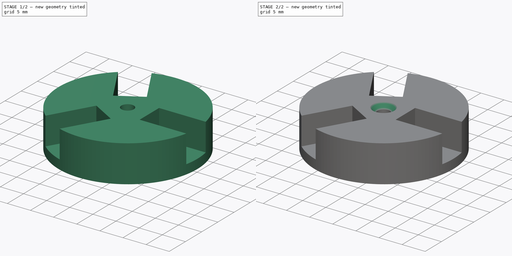
[diagram: build sequence overview — one tinted view per stage of 2, left to right]
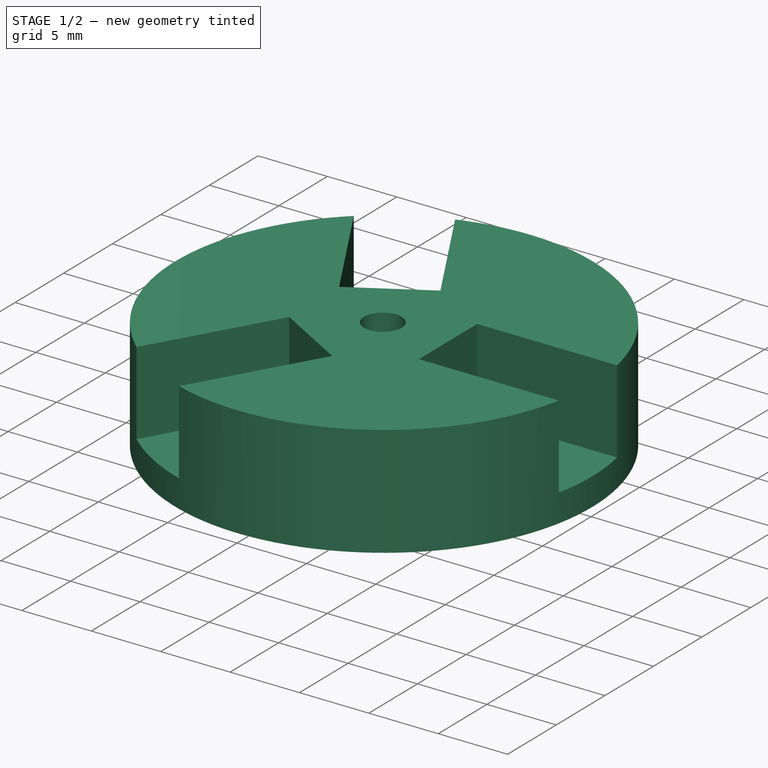
[diagram: stage 1 of 2 — iso view after this stage's code; geometry added in this stage tinted green]
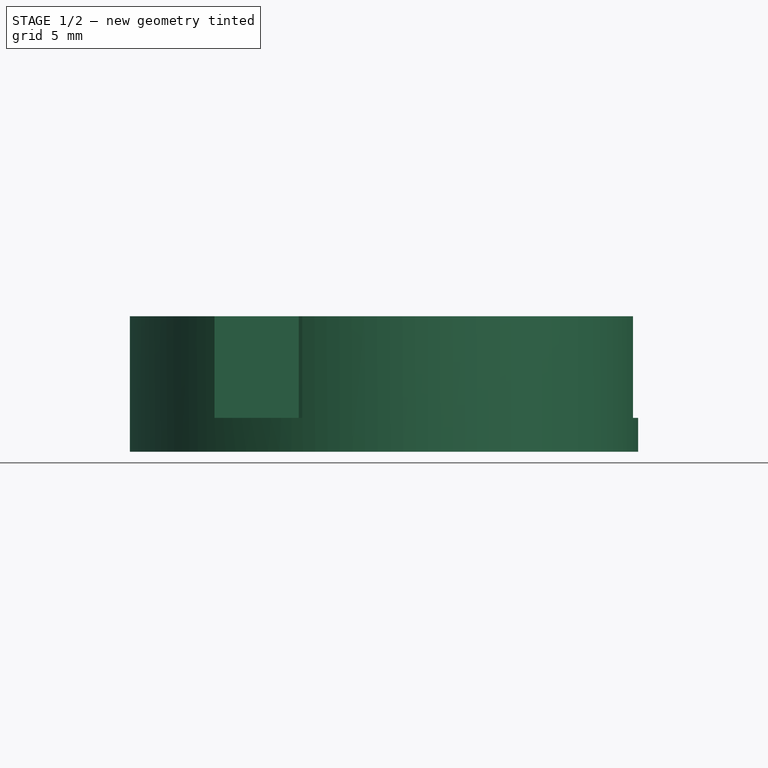
[diagram: stage 1 of 2 — front view after this stage's code; geometry added in this stage tinted green]
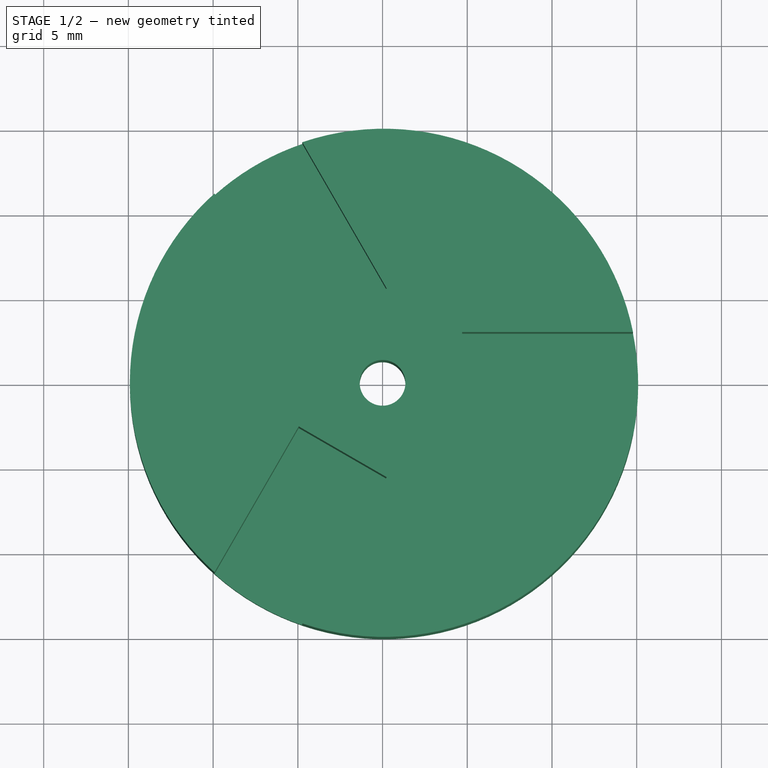
[diagram: stage 1 of 2 — top view after this stage's code; geometry added in this stage tinted green]
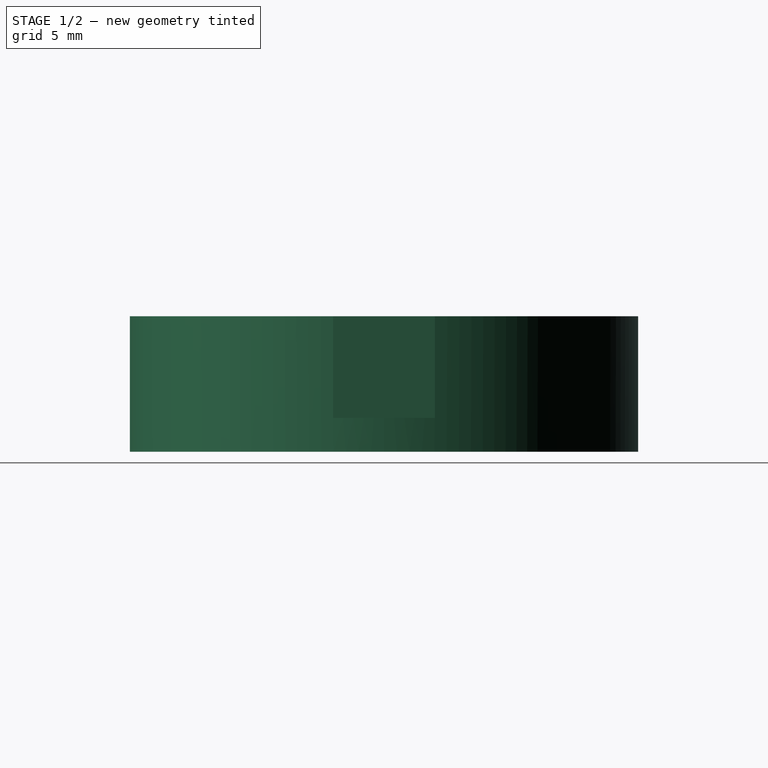
[diagram: stage 1 of 2 — right view after this stage's code; geometry added in this stage tinted green]
FCSTD DOCUMENT  (FreeCAD 0.16R6712 (Git))
Label: windCupHolder
License: All rights reserved
LicenseURL: http://en.wikipedia.org/wiki/All_rights_reserved
objects: Sketcher::SketchObject×3, PartDesign::Pocket×2, PartDesign::Pad×1, PartDesign::Chamfer×1
note: 10 computed .brp shape members not serialized (recipe doc carries the construction recipe); baked Part::Feature solids carry a one-line shape summary decoded from their .brp

FEATURE [Sketcher::SketchObject] Sketch
  sketch-geometry (2):
    g0: Circle CenterX=0.085228 CenterY=0 CenterZ=0 NormalX=0 NormalY=0 NormalZ=1 Radius=15
    g1: Circle CenterX=0 CenterY=0 CenterZ=0 NormalX=0 NormalY=0 NormalZ=1 Radius=1.35
  constraints (3):
    c: Coincident(g1,g-1)
    c: Radius(g1) = 1.35
    c: Radius(g0) = 15
FEATURE [PartDesign::Pad] Pad
  Length = 8
  Length2 = 100
  Sketch = -> Sketch
  Type = 0
FEATURE [Sketcher::SketchObject] Sketch001
  Placement = pos=(0,0,8) rot=(0,0,1;0rad)
  Support = -> Pad [Face4]
  sketch-geometry (16):
    g0: LineSegment [constr] StartX=0 StartY=0 StartZ=0 EndX=56.0239 EndY=0 EndZ=0
    g1: LineSegment [constr] StartX=0 StartY=0 StartZ=0 EndX=-39.5109 EndY=68.4348 EndZ=0
    g2: LineSegment [constr] StartX=0 StartY=0 StartZ=0 EndX=-22.3605 EndY=-38.7295 EndZ=0
    g3: LineSegment StartX=4.69899 StartY=3 StartZ=0 EndX=14.799 EndY=3 EndZ=0
    g4: LineSegment StartX=4.69899 StartY=3 StartZ=0 EndX=4.69899 EndY=-3 EndZ=0
    g5: LineSegment StartX=4.69899 StartY=-3 StartZ=0 EndX=14.799 EndY=-3 EndZ=0
    g6: Circle [constr] CenterX=0 CenterY=0 CenterZ=0 NormalX=0 NormalY=0 NormalZ=1 Radius=15.1
    g7: LineSegment StartX=-9.99757 StartY=11.3163 StartZ=0 EndX=-4.94757 EndY=2.56944 EndZ=0
    g8: LineSegment StartX=-4.94757 StartY=2.56944 StartZ=0 EndX=0.248583 EndY=5.56944 EndZ=0
    g9: LineSegment StartX=0.248583 StartY=5.56944 StartZ=0 EndX=-4.80142 EndY=14.3163 EndZ=0
    g10: LineSegment StartX=-9.99757 StartY=-11.3163 StartZ=0 EndX=-4.94757 EndY=-2.56944 EndZ=0
    g11: LineSegment StartX=-4.94757 StartY=-2.56944 StartZ=0 EndX=0.248583 EndY=-5.56944 EndZ=0
    g12: LineSegment StartX=0.248583 StartY=-5.56944 StartZ=0 EndX=-4.80142 EndY=-14.3163 EndZ=0
    g13: ArcOfCircle CenterX=0 CenterY=0 CenterZ=0 NormalX=0 NormalY=0 NormalZ=1 Radius=15.1 StartAngle=1.89439 EndAngle=2.2944
    g14: ArcOfCircle CenterX=0 CenterY=0 CenterZ=0 NormalX=0 NormalY=0 NormalZ=1 Radius=15.1 StartAngle=3.98878 EndAngle=4.3888
    g15: ArcOfCircle CenterX=0 CenterY=0 CenterZ=0 NormalX=0 NormalY=0 NormalZ=1 Radius=15.1 StartAngle=6.08318 EndAngle=6.48319
  constraints (47):
    c: Coincident(g0,g-1)
    c: Horizontal(g0)
    c: Coincident(g1,g-1)
    c: Coincident(g2,g-1)
    c: Angle(g0,g1) = 2.0944
    c: Angle(g2,g0) = 2.0944
    c: Horizontal(g3)
    c: Coincident(g4,g3)
    c: Vertical(g4)
    c: Coincident(g5,g4)
    c: Horizontal(g5)
    c: Coincident(g6,g-1)
    c: Radius(g6) = 15.1
    c: PointOnObject(g3,g6)
    c: PointOnObject(g5,g6)
    c: PointOnObject(g7,g6)
    c: Coincident(g8,g7)
    c: Coincident(g9,g8)
    c: PointOnObject(g9,g6)
    c: PointOnObject(g10,g6)
    c: Coincident(g11,g10)
    c: Coincident(g12,g11)
    c: PointOnObject(g12,g6)
    c: Parallel(g10,g2)
    c: Parallel(g2,g12)
    c: Parallel(g7,g9)
    c: Parallel(g9,g1)
    c: Perpendicular(g8,g7)
    c: Perpendicular(g10,g11)
    c: DistanceX(g3,g3) = 10.1
    c: DistanceY(g4,g4) = 6
    c: Equal(g3,g10)
    c: Equal(g10,g9)
    c: Equal(g11,g8)
    c: Equal(g8,g4)
    c: Symmetric(g7,g9,g1)
    c: Symmetric(g10,g12,g2)
    c: Symmetric(g5,g3,g0)
    c: Coincident(g13,g-1)
    c: Coincident(g13,g7)
    c: Coincident(g13,g9)
    c: Coincident(g14,g-1)
    c: Coincident(g14,g10)
    c: Coincident(g14,g12)
    c: Coincident(g15,g-1)
    c: Coincident(g15,g3)
    c: Coincident(g15,g5)
FEATURE [PartDesign::Pocket] Pocket
  Length = 6
  Sketch = -> Sketch001
  Type = 0
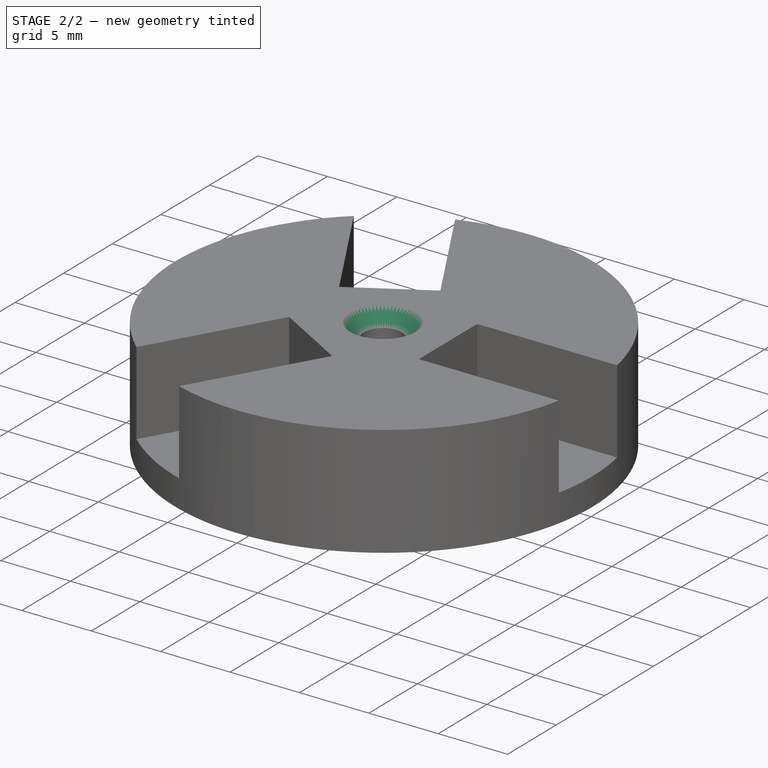
[diagram: stage 2 of 2 — iso view after this stage's code; geometry added in this stage tinted green]
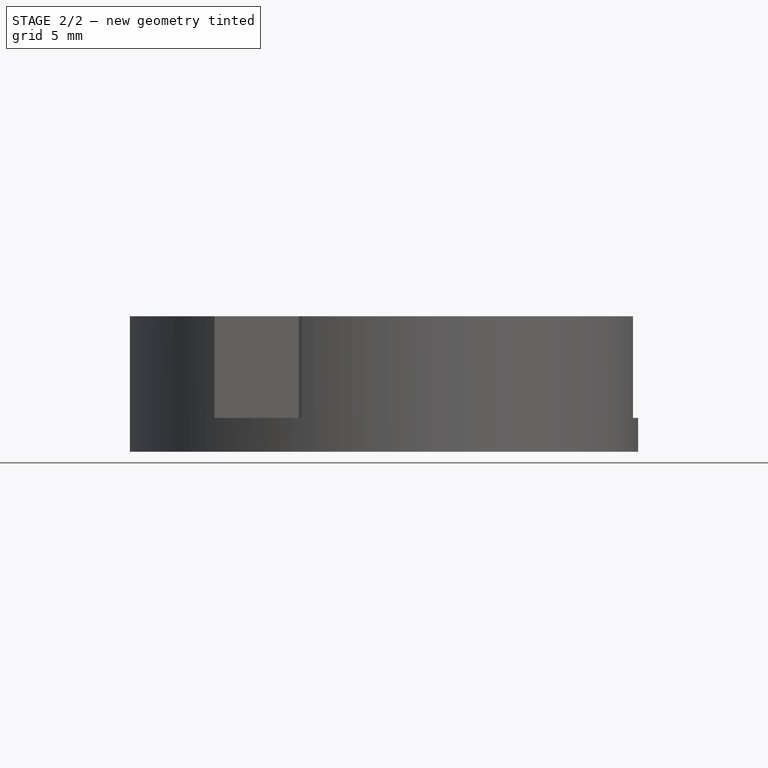
[diagram: stage 2 of 2 — front view after this stage's code; geometry added in this stage tinted green]
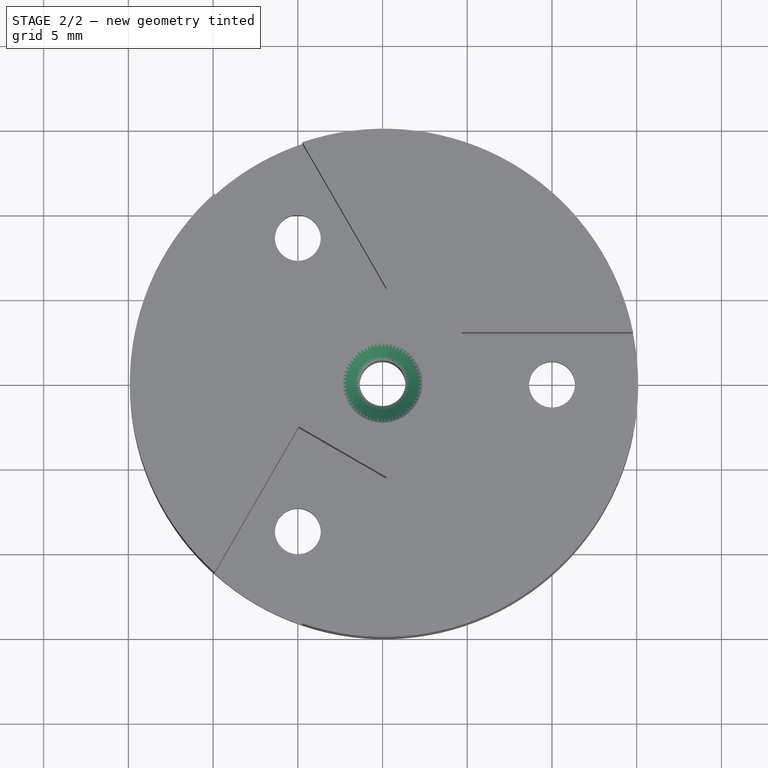
[diagram: stage 2 of 2 — top view after this stage's code; geometry added in this stage tinted green]
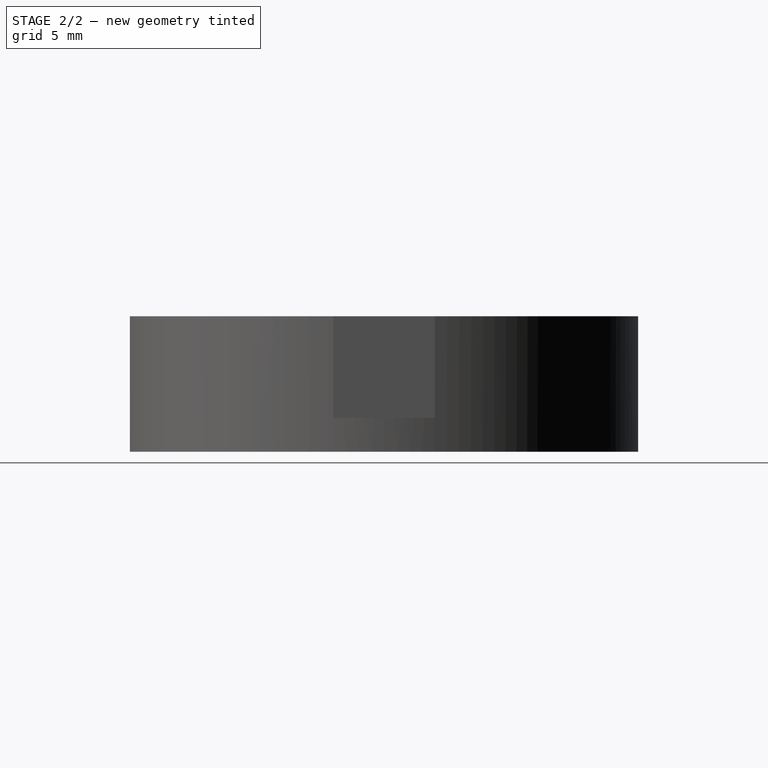
[diagram: stage 2 of 2 — right view after this stage's code; geometry added in this stage tinted green]
FEATURE [Sketcher::SketchObject] Sketch002
  Placement = pos=(0,0,0) rot=(1,0,0;3.14159rad)
  Support = -> Pocket [Face2]
  sketch-geometry (6):
    g0: LineSegment [constr] StartX=0 StartY=0 StartZ=0 EndX=30 EndY=0 EndZ=0
    g1: LineSegment [constr] StartX=0 StartY=0 StartZ=0 EndX=-15 EndY=25.9808 EndZ=0
    g2: LineSegment [constr] StartX=0 StartY=0 StartZ=0 EndX=-15 EndY=-25.9808 EndZ=0
    g3: Circle CenterX=10 CenterY=0 CenterZ=0 NormalX=0 NormalY=0 NormalZ=1 Radius=1.35
    g4: Circle CenterX=-5 CenterY=8.66025 CenterZ=0 NormalX=0 NormalY=0 NormalZ=1 Radius=1.35
    g5: Circle CenterX=-5 CenterY=-8.66025 CenterZ=0 NormalX=0 NormalY=0 NormalZ=1 Radius=1.35
  constraints (18):
    c: Coincident(g0,g-1)
    c: PointOnObject(g0,g-1)
    c: Coincident(g1,g-1)
    c: Coincident(g2,g-1)
    c: DistanceX(g0,g0) = 30
    c: Equal(g1,g2)
    c: Equal(g2,g0)
    c: Angle(g0,g1) = 2.0944
    c: Angle(g2,g0) = 2.0944
    c: PointOnObject(g3,g0)
    c: PointOnObject(g5,g2)
    c: Radius(g3) = 1.35
    c: Equal(g5,g4)
    c: Equal(g4,g3)
    c: DistanceX(g-1,g3) = 10
    c: Distance(g-1,g4) = 10
    c: Distance(g-1,g5) = 10
    c: PointOnObject(g4,g1)
FEATURE [PartDesign::Pocket] Pocket001
  Length = 5
  Sketch = -> Sketch002
  Type = 0
FEATURE [PartDesign::Chamfer] Chamfer
  Base = -> Pocket001 [Edge34]
  Size = 1
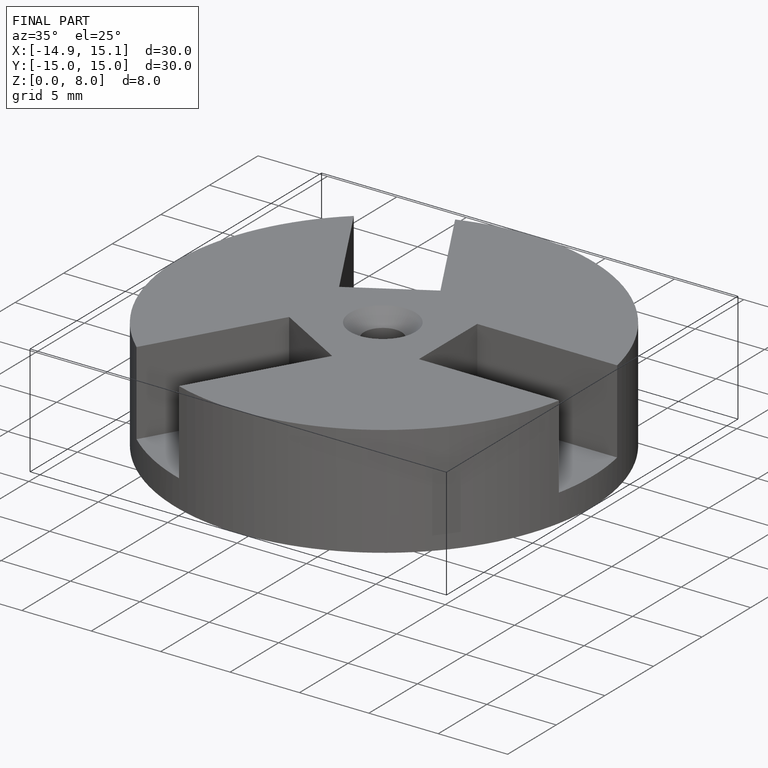
[diagram: finished part — iso view with bounding-box wireframe]
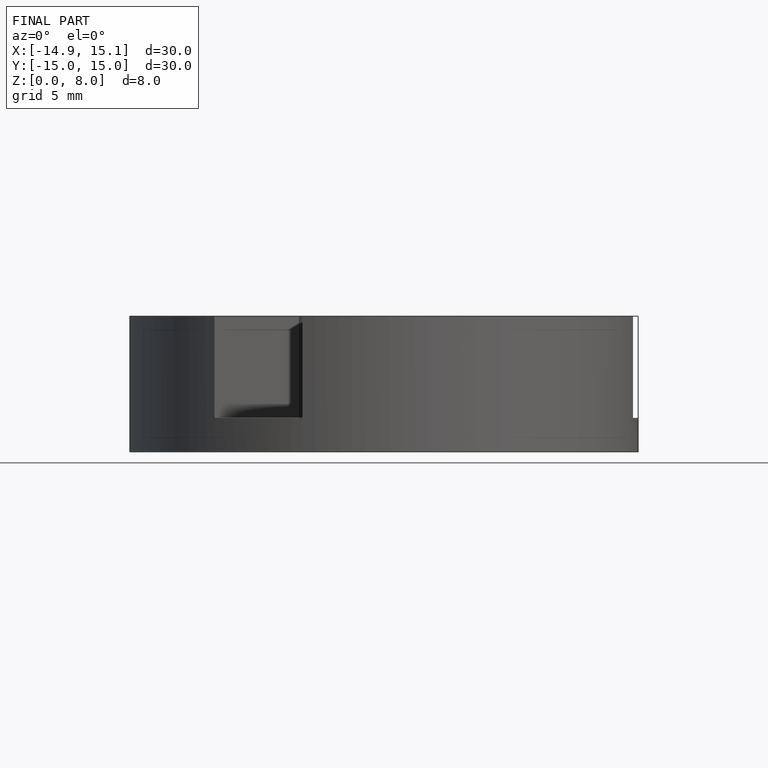
[diagram: finished part — front view with bounding-box wireframe]
